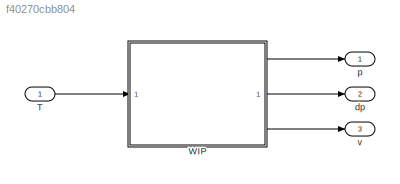
MODEL slx_f40270cbb804
KIND model
CONFIG AbsTol = 1e-3
CONFIG EnableMultiTasking = off
CONFIG FixedStep = auto
CONFIG MaxStep = 1e-3
CONFIG MinStep = auto
CONFIG RelTol = 1e-3
CONFIG SampleTimeConstraint = Unconstrained
CONFIG SolverName = ode23t
CONFIG StartTime = 0.0
CONFIG StopTime = 10.0
BLOCK [Inport] T
BLOCK [SubSystem] WIP
  ReferencedSubsystem = WIP
BLOCK [Outport] dp
  Port = 2
BLOCK [Outport] p
BLOCK [Outport] v
  Port = 3
LINE T:1 -> WIP:1
LINE WIP:1 -> p:1
LINE WIP:2 -> dp:1
LINE WIP:3 -> v:1
